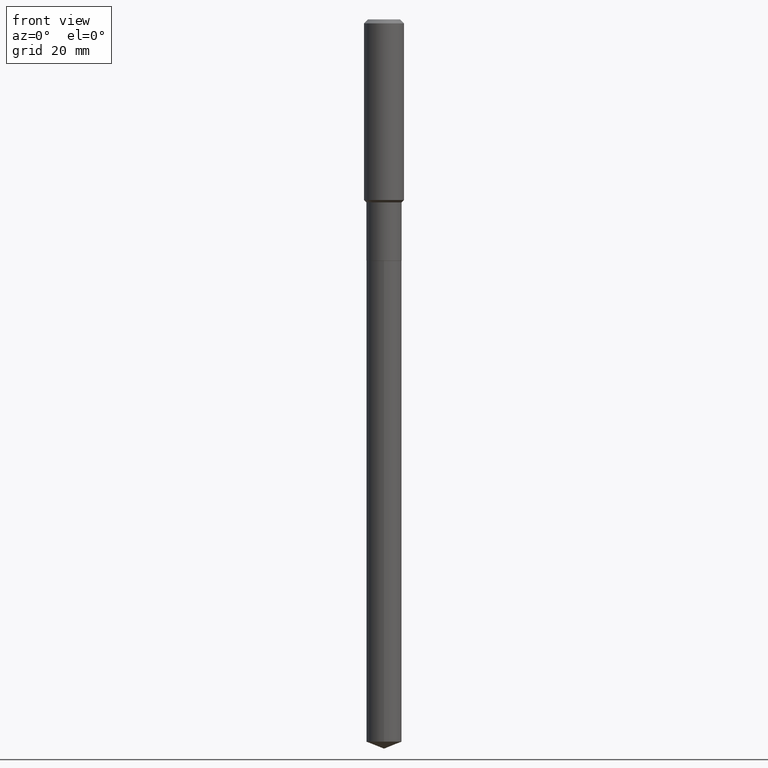
[diagram: clean part render]
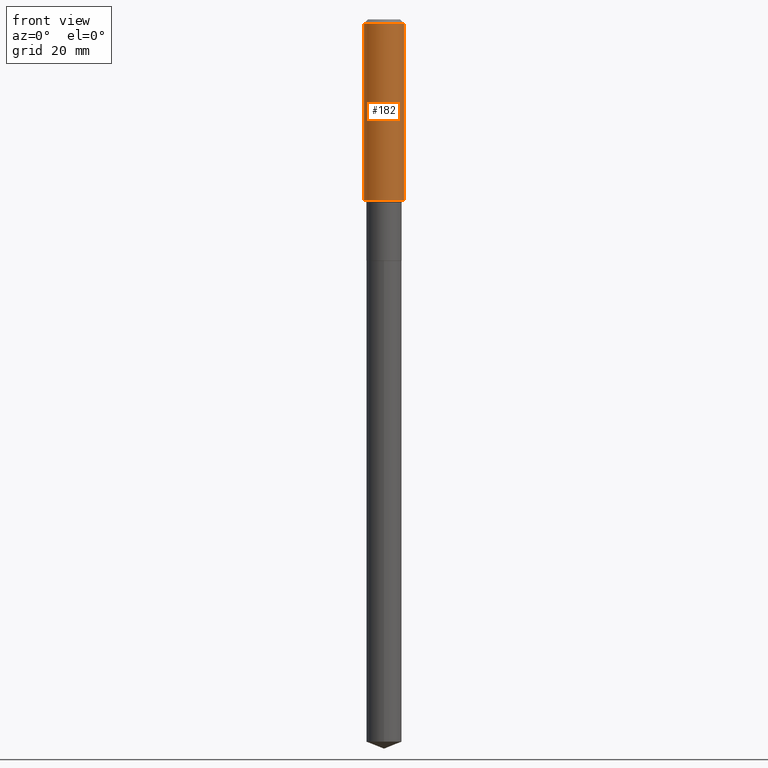
[diagram: same view with one face highlighted and labeled with its STEP entity id]
A machine part, front view. The second image highlights one B-rep face of the part: STEP entity #182.
In plain terms, the highlighted cylindrical surface (edge-blend (fillet) strip) has radius 5 mm, axis along (-0, 0, 1).
Its self-contained STEP definition (entity closure, byte-faithful):
#4 = EDGE_CURVE ( 'NONE', #108, #359, #438, .T. ) ;
#28 = ORIENTED_EDGE ( 'NONE', *, *, #141, .T. ) ;
#31 = DIRECTION ( 'NONE',  ( -2.445468806185136597E-29, 3.491481338843145583E-15, 1.000000000000000000 ) ) ;
#46 = AXIS2_PLACEMENT_3D ( 'NONE', #105, #409, #68 ) ;
#59 = FACE_OUTER_BOUND ( 'NONE', #354, .T. ) ;
#65 = LINE ( 'NONE', #462, #218 ) ;
#68 = DIRECTION ( 'NONE',  ( 1.000000000000000000, -6.982962677686265922E-15, 0.000000000000000000 ) ) ;
#89 = EDGE_CURVE ( 'NONE', #362, #108, #333, .T. ) ;
#103 = CARTESIAN_POINT ( 'NONE',  ( 0.1968500000000002192, -7.569880690745819598E-15, -1.774399999999999533 ) ) ;
#105 = CARTESIAN_POINT ( 'NONE',  ( 9.627810689950948900E-31, -1.374596203102555561E-16, -0.03937000000000026589 ) ) ;
#106 = DIRECTION ( 'NONE',  ( 1.000000000000000000, -6.982962677686265922E-15, 0.000000000000000000 ) ) ;
#108 = VERTEX_POINT ( 'NONE', #471 ) ;
#123 = DIRECTION ( 'NONE',  ( -2.445468806185136877E-29, 3.491481338843145188E-15, 1.000000000000000000 ) ) ;
#134 = VERTEX_POINT ( 'NONE', #103 ) ;
#141 = EDGE_CURVE ( 'NONE', #134, #359, #65, .T. ) ;
#180 = AXIS2_PLACEMENT_3D ( 'NONE', #264, #31, #106 ) ;
#182 = ADVANCED_FACE ( 'NONE', ( #59 ), #209, .T. ) ;
#190 = CIRCLE ( 'NONE', #180, 0.1968500000000002192 ) ;
#209 = CYLINDRICAL_SURFACE ( 'NONE', #281, 0.1968500000000001082 ) ;
#218 = VECTOR ( 'NONE', #123, 39.37007874015748143 ) ;
#221 = CARTESIAN_POINT ( 'NONE',  ( 0.1968500000000000250, -1.512055823412797189E-15, -0.03937000000000026589 ) ) ;
#246 = CARTESIAN_POINT ( 'NONE',  ( -0.1968500000000001082, 1.398703375343757985E-15, -9.682923725166787881E-30 ) ) ;
#255 = ORIENTED_EDGE ( 'NONE', *, *, #89, .F. ) ;
#264 = CARTESIAN_POINT ( 'NONE',  ( 4.339239849694905201E-29, -6.195284487643276412E-15, -1.774399999999999533 ) ) ;
#281 = AXIS2_PLACEMENT_3D ( 'NONE', #372, #292, #400 ) ;
#292 = DIRECTION ( 'NONE',  ( -2.445468806185136597E-29, 3.491481338843145583E-15, 1.000000000000000000 ) ) ;
#295 = VECTOR ( 'NONE', #398, 39.37007874015748143 ) ;
#333 = LINE ( 'NONE', #246, #295 ) ;
#354 = EDGE_LOOP ( 'NONE', ( #255, #464, #28, #360 ) ) ;
#359 = VERTEX_POINT ( 'NONE', #221 ) ;
#360 = ORIENTED_EDGE ( 'NONE', *, *, #4, .F. ) ;
#362 = VERTEX_POINT ( 'NONE', #442 ) ;
#372 = CARTESIAN_POINT ( 'NONE',  ( 0.000000000000000000, 0.000000000000000000, 0.000000000000000000 ) ) ;
#398 = DIRECTION ( 'NONE',  ( -2.445468806185136877E-29, 3.491481338843145188E-15, 1.000000000000000000 ) ) ;
#400 = DIRECTION ( 'NONE',  ( 1.000000000000000000, -6.982962677686266711E-15, 4.876176775795935793E-29 ) ) ;
#409 = DIRECTION ( 'NONE',  ( -2.445468806185136597E-29, 3.491481338843145583E-15, 1.000000000000000000 ) ) ;
#427 = EDGE_CURVE ( 'NONE', #362, #134, #190, .T. ) ;
#438 = CIRCLE ( 'NONE', #46, 0.1968500000000000250 ) ;
#442 = CARTESIAN_POINT ( 'NONE',  ( -0.1968500000000002192, -4.796581112299517835E-15, -1.774399999999999533 ) ) ;
#462 = CARTESIAN_POINT ( 'NONE',  ( 0.1968500000000001082, -1.374596203102542397E-15, 9.598753983154305062E-30 ) ) ;
#464 = ORIENTED_EDGE ( 'NONE', *, *, #427, .T. ) ;
#471 = CARTESIAN_POINT ( 'NONE',  ( -0.1968500000000000250, -1.767668678633007617E-15, -0.03937000000000026589 ) ) ;